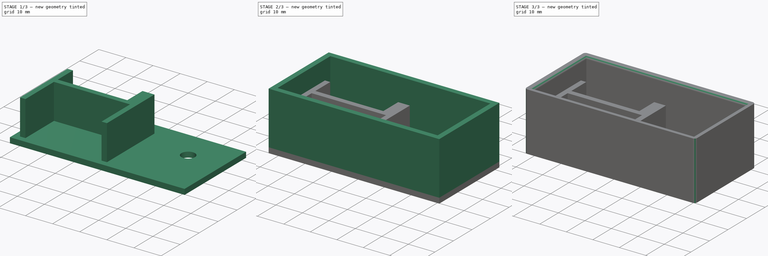
[diagram: build sequence overview — one tinted view per stage of 3, left to right]
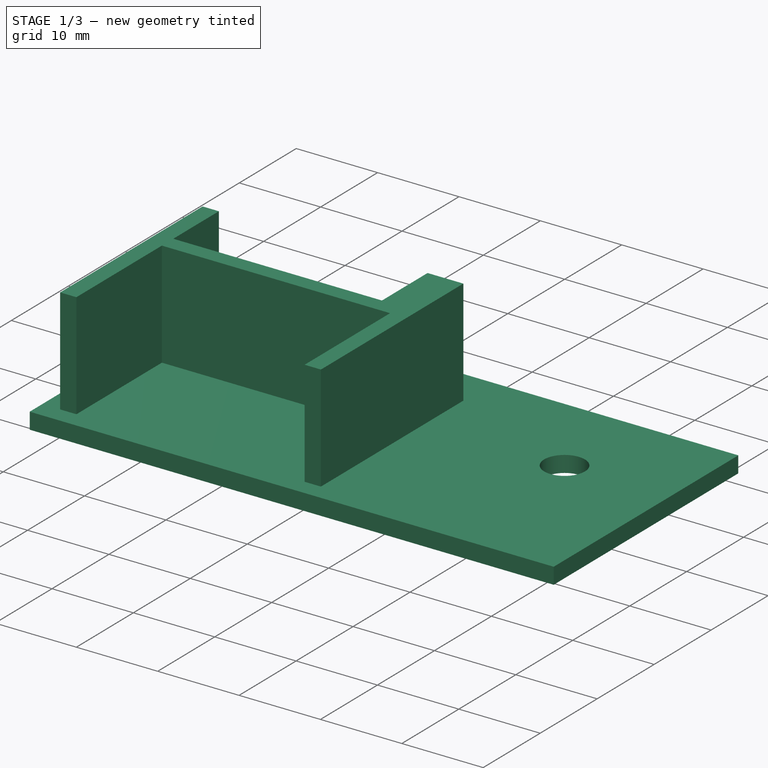
[diagram: stage 1 of 3 — iso view after this stage's code; geometry added in this stage tinted green]
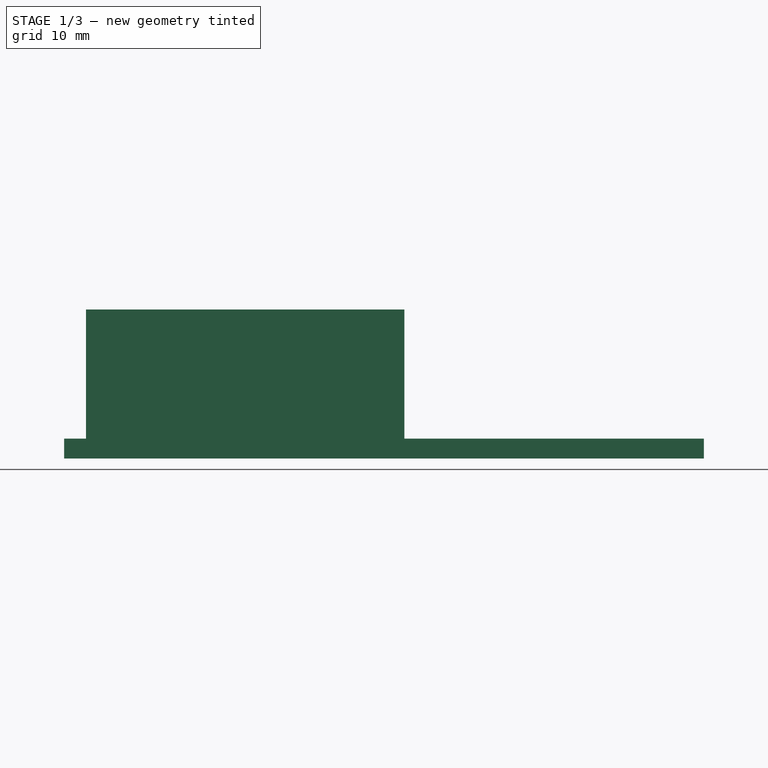
[diagram: stage 1 of 3 — front view after this stage's code; geometry added in this stage tinted green]
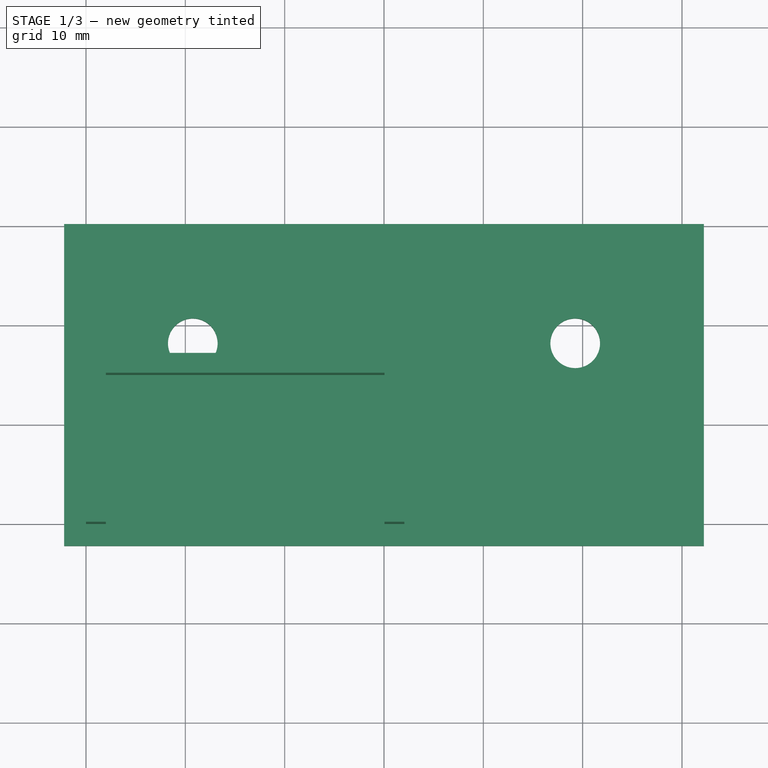
[diagram: stage 1 of 3 — top view after this stage's code; geometry added in this stage tinted green]
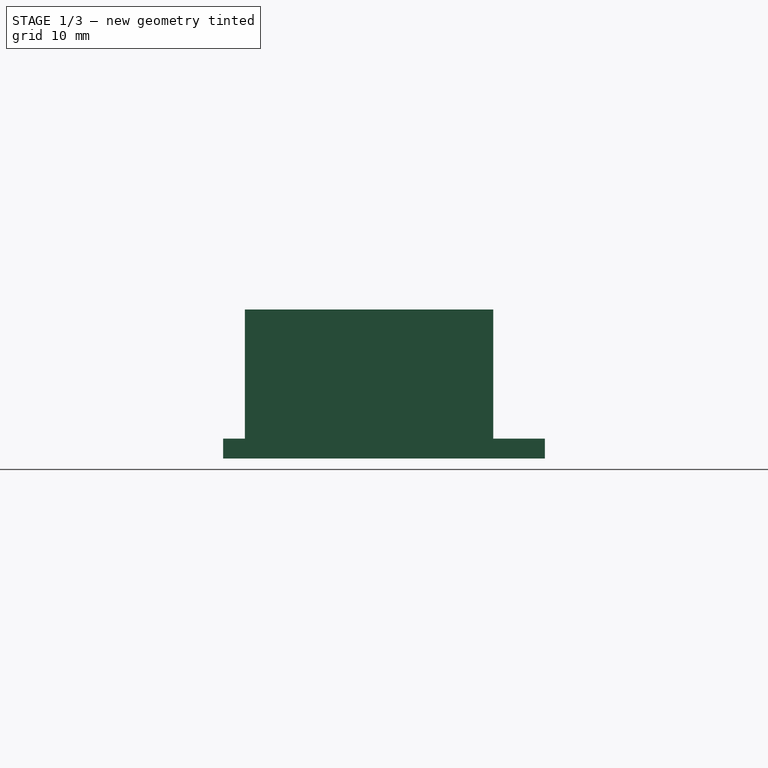
[diagram: stage 1 of 3 — right view after this stage's code; geometry added in this stage tinted green]
FCSTD DOCUMENT  (FreeCAD 0.20R29177 +426 (Git))
Label: PowersupplyHolder
License: All rights reserved
LicenseURL: http://en.wikipedia.org/wiki/All_rights_reserved
objects: Sketcher::SketchObject×5, PartDesign::Pad×4, PartDesign::Body×2, Spreadsheet::Sheet×1, PartDesign::Fillet×1
note: 17 computed .brp shape members not serialized (recipe doc carries the construction recipe); baked Part::Feature solids carry a one-line shape summary decoded from their .brp

FEATURE [Spreadsheet::Sheet] Spreadsheet
  cells = A2=betweenScrewDist; B2(betweenScrewDist)==39 - 0.5; C2=was 39, changed to 38; A3=powerSupplyWidth; B3(powerSupplyWidth)=60; A4=powerSupplyHeight; B4(powerSupplyHeight)=28; A6=pwAdj; B6(pwAdj)=0.2; A8=unitThickness; B8(unitThickness)=2; A10=screwHoleR; B10(screwHoleR)=2.5; A12=screwHoleToWindowSideDist; B12(screwHoleToWindowSideDist)==10 + 2; C12=was 10, changed to 12; A13=screwHoleCapR; B13(screwHoleCapR)==screwHoleR + 1.5; A14=bottomThickness; B14(bottomThickness)==unitThickness; A15=bottomWallHeight; B15(bottomWallHeight)=20; A18=bottomScreCapThickness; B18(bottomScreCapThickness)==unitThickness + 2.5; A22=picoHolderW; B22(picoHolderW)=25.6; A23=picoHolderAdj; B23(picoHolderAdj)=0.05; A24=picoAdapterPicosideHeight; B24(picoAdapterPicosideHeight)=8; A25=picoAdapterPowersideHeight; B25(picoAdapterPowersideHeight)=15
FEATURE [Sketcher::SketchObject] Sketch
  FullyConstrained = true
  MapMode = 5
  Support = -> [XY_Plane]
  expr: Constraints[10] = Spreadsheet.powerSupplyWidth + Spreadsheet.pwAdj * 2
  expr: Constraints[11] = Spreadsheet.powerSupplyHeight + Spreadsheet.pwAdj * 2
  expr: Constraints[20] = Spreadsheet.unitThickness
  expr: Constraints[21] = Spreadsheet.unitThickness
  expr: Constraints[22] = Spreadsheet.unitThickness
  expr: Constraints[23] = Spreadsheet.unitThickness
  expr: Constraints[26] = Spreadsheet.powerSupplyWidth
  expr: Constraints[29] = Spreadsheet.betweenScrewDist
  expr: Constraints[30] = Spreadsheet.screwHoleR
  expr: Constraints[31] = Spreadsheet.screwHoleR
  expr: Constraints[34] = (Spreadsheet.powerSupplyWidth - Spreadsheet.betweenScrewDist) / 2
  expr: Constraints[35] = Spreadsheet.screwHoleToWindowSideDist
  expr: Constraints[7] = Spreadsheet.pwAdj
  expr: Constraints[8] = Spreadsheet.pwAdj
  sketch-geometry (12):
    g0: LineSegment StartX=-0.2 StartY=-0.2 StartZ=0 EndX=60.2 EndY=-0.2 EndZ=0
    g1: LineSegment StartX=60.2 StartY=28.2 StartZ=0 EndX=-0.2 EndY=28.2 EndZ=0
    g2: LineSegment StartX=-0.2 StartY=28.2 StartZ=0 EndX=-0.2 EndY=-0.2 EndZ=0
    g3: LineSegment StartX=60.2 StartY=-0.2 StartZ=0 EndX=60.2 EndY=28.2 EndZ=0
    g4: LineSegment StartX=-2.2 StartY=30.2 StartZ=0 EndX=62.2 EndY=30.2 EndZ=0
    g5: LineSegment StartX=62.2 StartY=30.2 StartZ=0 EndX=62.2 EndY=-2.2 EndZ=0
    g6: LineSegment StartX=62.2 StartY=-2.2 StartZ=0 EndX=-2.2 EndY=-2.2 EndZ=0
    g7: LineSegment StartX=-2.2 StartY=-2.2 StartZ=0 EndX=-2.2 EndY=30.2 EndZ=0
    g8: LineSegment StartX=0 StartY=18.2 StartZ=0 EndX=60 EndY=18.2 EndZ=0
    g9: Circle CenterX=10.75 CenterY=18.2 CenterZ=0 NormalX=0 NormalY=0 NormalZ=1 AngleXU=0 Radius=2.5
    g10: Circle CenterX=49.25 CenterY=18.2 CenterZ=0 NormalX=0 NormalY=0 NormalZ=1 AngleXU=0 Radius=2.5
    g11: LineSegment StartX=10.75 StartY=18.2 StartZ=0 EndX=49.25 EndY=18.2 EndZ=0
  constraints (36):
    c: Horizontal(g0)
    c: Coincident(g2,g1)
    c: Coincident(g2,g0)
    c: Vertical(g2)
    c: Coincident(g3,g0)
    c: Coincident(g3,g1)
    c: Vertical(g3)
    c: DistanceX(g0,g-1) = 0.2
    c: DistanceY(g0,g-1) = 0.2
    c: Horizontal(g1)
    c: DistanceX(g1,g1) = 60.4
    c: DistanceY(g3,g3) = 28.4
    c: Coincident(g4,g5)
    c: Coincident(g5,g6)
    c: Coincident(g6,g7)
    c: Coincident(g7,g4)
    c: Horizontal(g4)
    c: Horizontal(g6)
    c: Vertical(g5)
    c: Vertical(g7)
    c: DistanceX(g4,g1) = 2
    c: DistanceY(g1,g4) = 2
    c: DistanceX(g1,g4) = 2
    c: DistanceY(g5,g0) = 2
    c: PointOnObject(g8,g-2)
    c: Horizontal(g8)
    c: DistanceX(g8,g8) = 60
    c: PointOnObject(g9,g8)
    c: PointOnObject(g10,g8)
    c: DistanceX(g9,g10) = 38.5
    c: Radius(g9) = 2.5
    c: Radius(g10) = 2.5
    c: Coincident(g11,g9)
    c: Coincident(g11,g10)
    c: DistanceX(g-1,g9) = 10.75
    c: DistanceY(g9,g4) = 12
FEATURE [Sketcher::SketchObject] Sketch001  label="Sketch001Base"
  ExternalGeometry = -> [Sketch]
  FullyConstrained = true
  MapMode = 5
  Support = -> [XY_Plane]
  sketch-geometry (6):
    g0: Circle CenterX=49.25 CenterY=18.2 CenterZ=0 NormalX=0 NormalY=0 NormalZ=1 AngleXU=0 Radius=2.5
    g1: Circle CenterX=10.75 CenterY=18.2 CenterZ=0 NormalX=0 NormalY=0 NormalZ=1 AngleXU=0 Radius=2.5
    g2: LineSegment StartX=62.2 StartY=30.2 StartZ=0 EndX=62.2 EndY=-2.2 EndZ=0
    g3: LineSegment StartX=62.2 StartY=-2.2 StartZ=0 EndX=-2.2 EndY=-2.2 EndZ=0
    g4: LineSegment StartX=62.2 StartY=30.2 StartZ=0 EndX=-2.2 EndY=30.2 EndZ=0
    g5: LineSegment StartX=-2.2 StartY=30.2 StartZ=0 EndX=-2.2 EndY=-2.2 EndZ=0
  constraints (13):
    c: Coincident(g0,g-7)
    c: Equal(g0,g-7)
    c: Coincident(g1,g-6)
    c: Equal(g-6,g1)
    c: Coincident(g2,g-3)
    c: Vertical(g2)
    c: Coincident(g3,g2)
    c: Coincident(g3,g-4)
    c: Horizontal(g3)
    c: Coincident(g4,g2)
    c: Coincident(g4,g-4)
    c: Coincident(g5,g4)
    c: Coincident(g5,g3)
FEATURE [PartDesign::Pad] Pad
  Direction = (0,0,1)
  Length = 2
  Length2 = 10
  Profile = -> Sketch001
  ReferenceAxis = -> Sketch001 [N_Axis]
  Type = 0
  expr: Length = Spreadsheet.unitThickness
FEATURE [PartDesign::Body] Body
  Group = -> [Sketch,Sketch001,Pad,Sketch002,Pad001,Sketch003,Pad002,Fillet]
  Origin = -> Origin
  Tip = -> Fillet
FEATURE [Sketcher::SketchObject] Sketch004
  FullyConstrained = true
  MapMode = 5
  Support = -> [XY_Plane001]
  expr: Constraints[26] = Spreadsheet.picoAdapterPicosideHeight
  expr: Constraints[27] = Spreadsheet.picoAdapterPicosideHeight
  expr: Constraints[28] = Spreadsheet.picoAdapterPowersideHeight
  expr: Constraints[29] = Spreadsheet.unitThickness
  expr: Constraints[30] = Spreadsheet.unitThickness
  expr: Constraints[31] = Spreadsheet.unitThickness
  expr: Constraints[32] = Spreadsheet.picoHolderW + Spreadsheet.picoHolderAdj
  expr: Constraints[33] = Spreadsheet.unitThickness
  expr: Constraints[34] = Spreadsheet.powerSupplyHeight + Spreadsheet.picoHolderAdj
  sketch-geometry (12):
    g0: LineSegment StartX=0 StartY=0 StartZ=0 EndX=0 EndY=25 EndZ=0
    g1: LineSegment StartX=0 StartY=25 StartZ=0 EndX=2 EndY=25 EndZ=0
    g2: LineSegment StartX=2 StartY=25 StartZ=0 EndX=2 EndY=17 EndZ=0
    g3: LineSegment StartX=2 StartY=17 StartZ=0 EndX=27.65 EndY=17 EndZ=0
    g4: LineSegment StartX=27.65 StartY=17 StartZ=0 EndX=27.65 EndY=25 EndZ=0
    g5: LineSegment StartX=27.65 StartY=25 StartZ=0 EndX=32.05 EndY=25 EndZ=0
    g6: LineSegment StartX=32.05 StartY=25 StartZ=0 EndX=32.05 EndY=0 EndZ=0
    g7: LineSegment StartX=32.05 StartY=0 StartZ=0 EndX=30.05 EndY=0 EndZ=0
    g8: LineSegment StartX=30.05 StartY=0 StartZ=0 EndX=30.05 EndY=15 EndZ=0
    g9: LineSegment StartX=30.05 StartY=15 StartZ=0 EndX=2 EndY=15 EndZ=0
    g10: LineSegment StartX=2 StartY=15 StartZ=0 EndX=2 EndY=0 EndZ=0
    g11: LineSegment StartX=2 StartY=0 StartZ=0 EndX=0 EndY=0 EndZ=0
  constraints (35):
    c: Coincident(g0,g-1)
    c: PointOnObject(g0,g-2)
    c: Coincident(g1,g0)
    c: Horizontal(g1)
    c: Coincident(g2,g1)
    c: Vertical(g2)
    c: Coincident(g3,g2)
    c: Horizontal(g3)
    c: Coincident(g4,g3)
    c: Vertical(g4)
    c: Coincident(g5,g4)
    c: Horizontal(g5)
    c: Coincident(g6,g5)
    c: PointOnObject(g6,g-1)
    c: Vertical(g6)
    c: Coincident(g7,g6)
    c: PointOnObject(g7,g-1)
    c: Coincident(g8,g7)
    c: Vertical(g8)
    c: Coincident(g9,g8)
    c: Horizontal(g9)
    c: Coincident(g10,g9)
    c: PointOnObject(g10,g-1)
    c: Vertical(g10)
    c: Coincident(g11,g10)
    c: Coincident(g11,g0)
    c: DistanceY(g2,g2) = 8
    c: DistanceY(g4,g4) = 8
    c: DistanceY(g10,g10) = 15
    c: DistanceY(g9,g2) = 2
    c: DistanceX(g1,g1) = 2
    c: DistanceX(g11,g11) = 2
    c: DistanceX(g3,g3) = 25.65
    c: DistanceX(g7,g7) = 2
    c: DistanceX(g9,g9) = 28.05
FEATURE [PartDesign::Pad] Pad003
  Direction = (0,0,1)
  Length = 15
  Length2 = 10
  Profile = -> Sketch004
  ReferenceAxis = -> Sketch004 [N_Axis]
  Type = 0
FEATURE [PartDesign::Body] Body001  label="Body001PicoAdapter"
  Group = -> [Sketch004,Pad003]
  Origin = -> Origin001
  Tip = -> Pad003
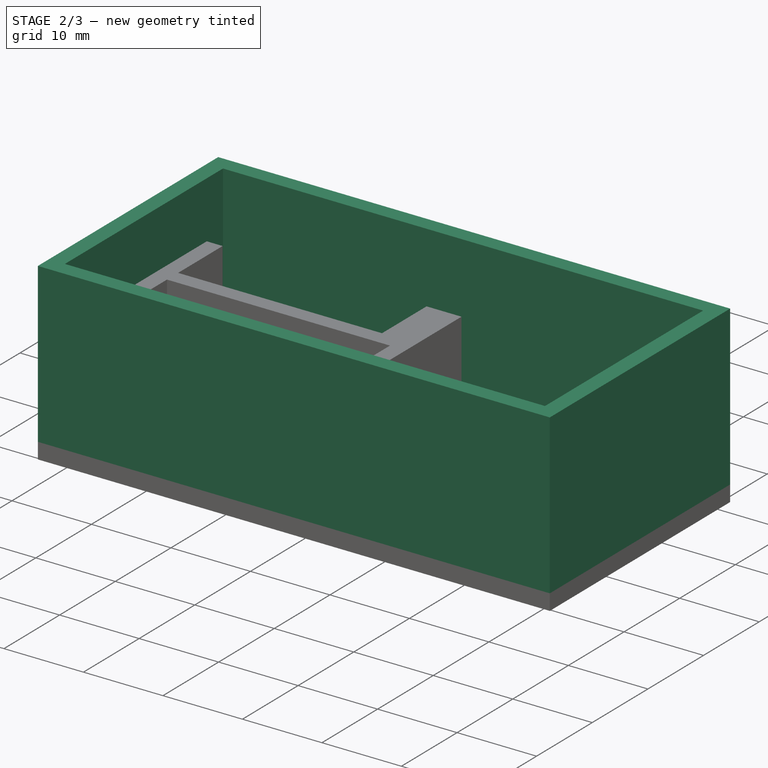
[diagram: stage 2 of 3 — iso view after this stage's code; geometry added in this stage tinted green]
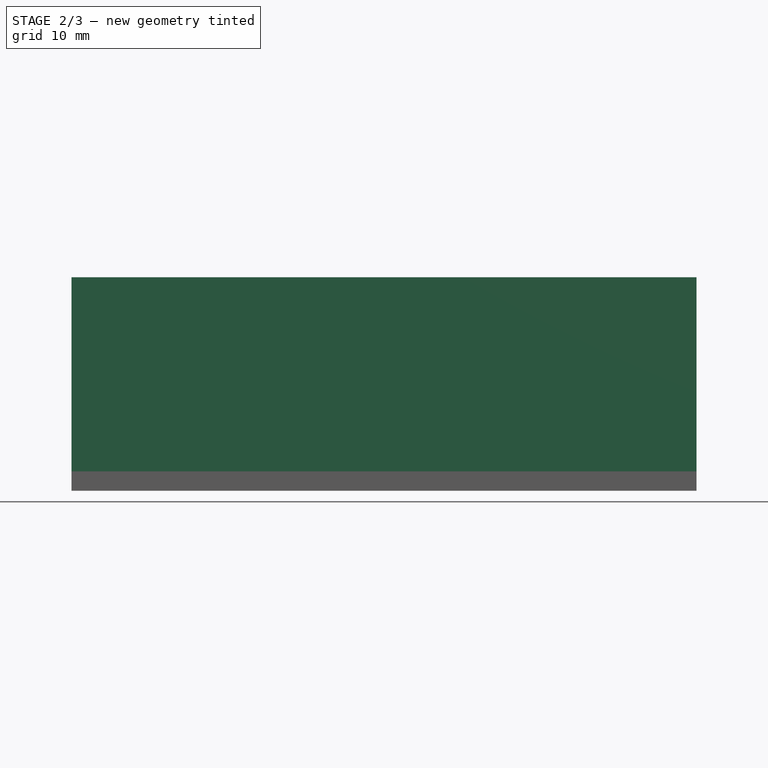
[diagram: stage 2 of 3 — front view after this stage's code; geometry added in this stage tinted green]
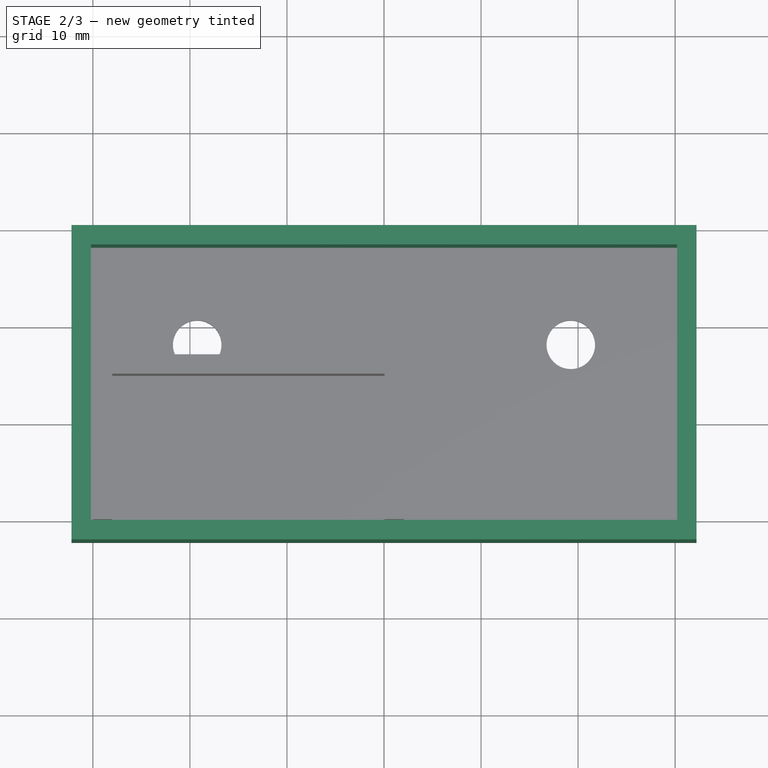
[diagram: stage 2 of 3 — top view after this stage's code; geometry added in this stage tinted green]
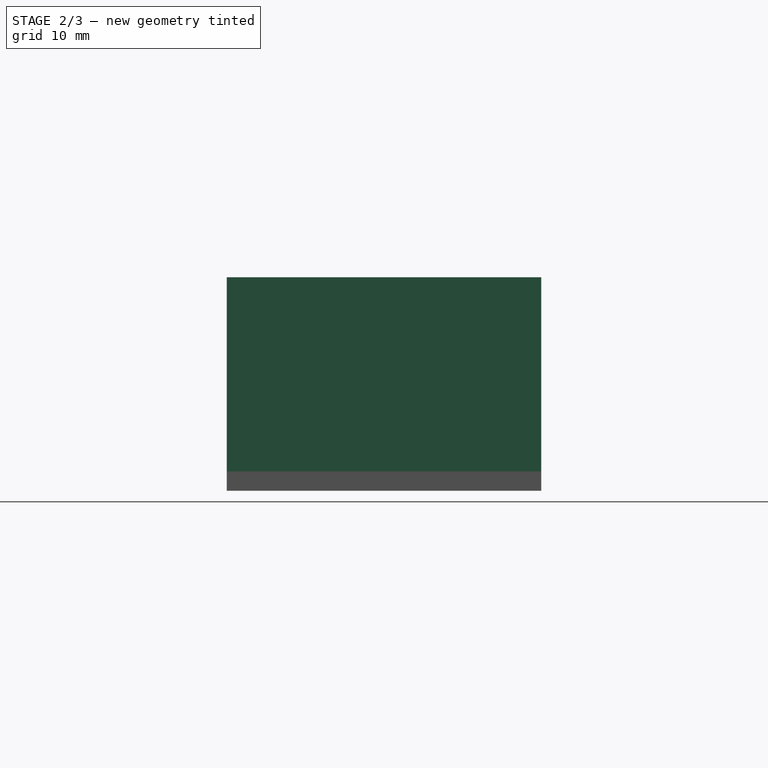
[diagram: stage 2 of 3 — right view after this stage's code; geometry added in this stage tinted green]
FEATURE [Sketcher::SketchObject] Sketch002
  ExternalGeometry = -> [Sketch]
  FullyConstrained = true
  MapMode = 5
  Support = -> [XY_Plane]
  sketch-geometry (8):
    g0: LineSegment StartX=-2.2 StartY=30.2 StartZ=0 EndX=62.2 EndY=30.2 EndZ=0
    g1: LineSegment StartX=62.2 StartY=30.2 StartZ=0 EndX=62.2 EndY=-2.2 EndZ=0
    g2: LineSegment StartX=62.2 StartY=-2.2 StartZ=0 EndX=-2.2 EndY=-2.2 EndZ=0
    g3: LineSegment StartX=-2.2 StartY=-2.2 StartZ=0 EndX=-2.2 EndY=30.2 EndZ=0
    g4: LineSegment StartX=-0.2 StartY=28.2 StartZ=0 EndX=60.2 EndY=28.2 EndZ=0
    g5: LineSegment StartX=60.2 StartY=28.2 StartZ=0 EndX=60.2 EndY=-0.2 EndZ=0
    g6: LineSegment StartX=60.2 StartY=-0.2 StartZ=0 EndX=-0.2 EndY=-0.2 EndZ=0
    g7: LineSegment StartX=-0.2 StartY=-0.2 StartZ=0 EndX=-0.2 EndY=28.2 EndZ=0
  constraints (20):
    c: Coincident(g0,g1)
    c: Coincident(g1,g2)
    c: Coincident(g2,g3)
    c: Coincident(g3,g0)
    c: Horizontal(g0)
    c: Horizontal(g2)
    c: Vertical(g1)
    c: Vertical(g3)
    c: Coincident(g0,g-4)
    c: Coincident(g4,g5)
    c: Coincident(g5,g6)
    c: Coincident(g6,g7)
    c: Coincident(g7,g4)
    c: Horizontal(g4)
    c: Horizontal(g6)
    c: Vertical(g5)
    c: Vertical(g7)
    c: Coincident(g4,g-6)
    c: Coincident(g5,g-7)
    c: Coincident(g1,g-8)
FEATURE [PartDesign::Pad] Pad001
  BaseFeature = -> Pad
  Direction = (0,0,1)
  Length = 22
  Length2 = 10
  Profile = -> Sketch002
  ReferenceAxis = -> Sketch002 [N_Axis]
  Type = 0
  expr: Length = Spreadsheet.bottomThickness + Spreadsheet.bottomWallHeight
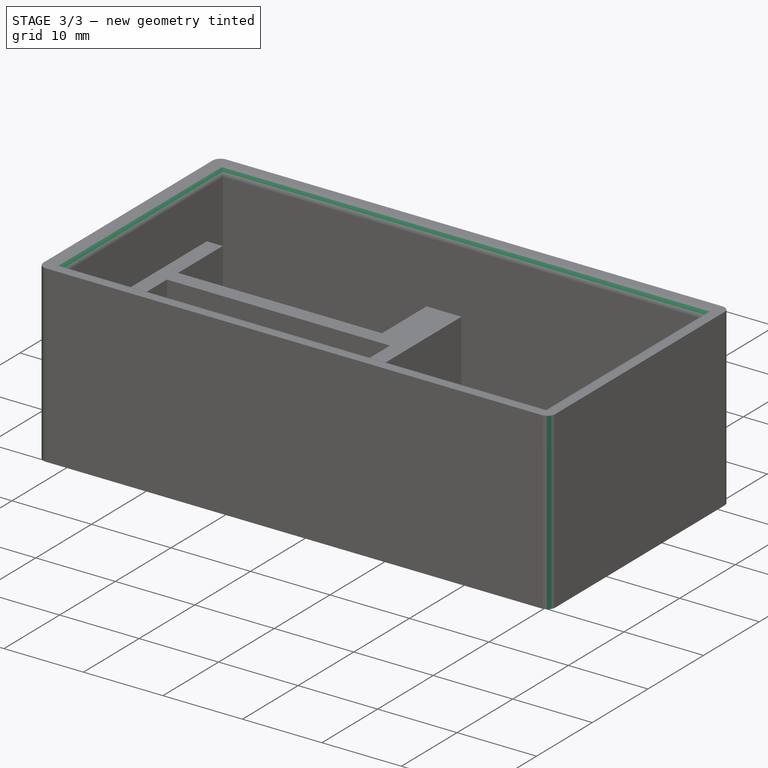
[diagram: stage 3 of 3 — iso view after this stage's code; geometry added in this stage tinted green]
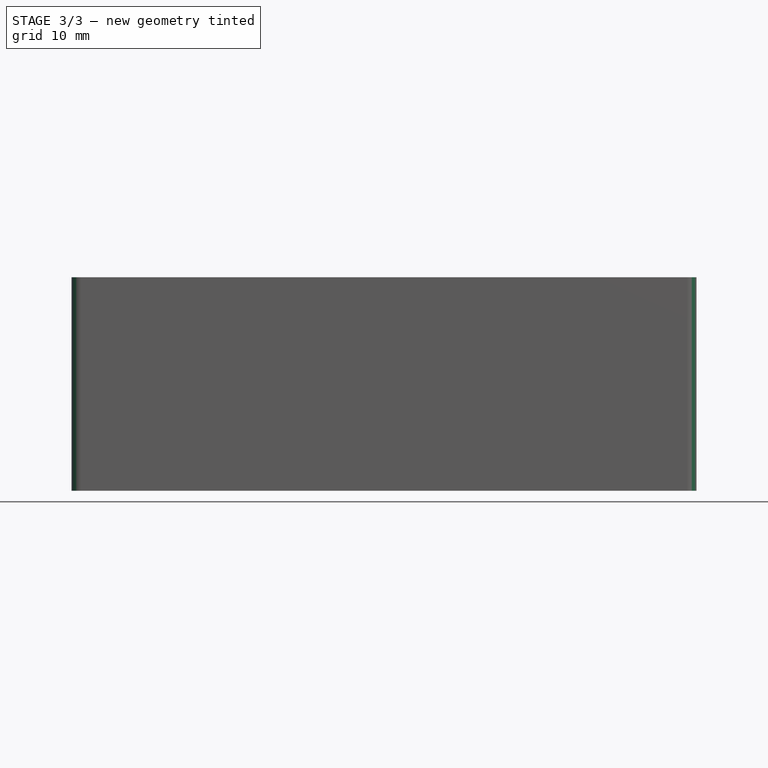
[diagram: stage 3 of 3 — front view after this stage's code; geometry added in this stage tinted green]
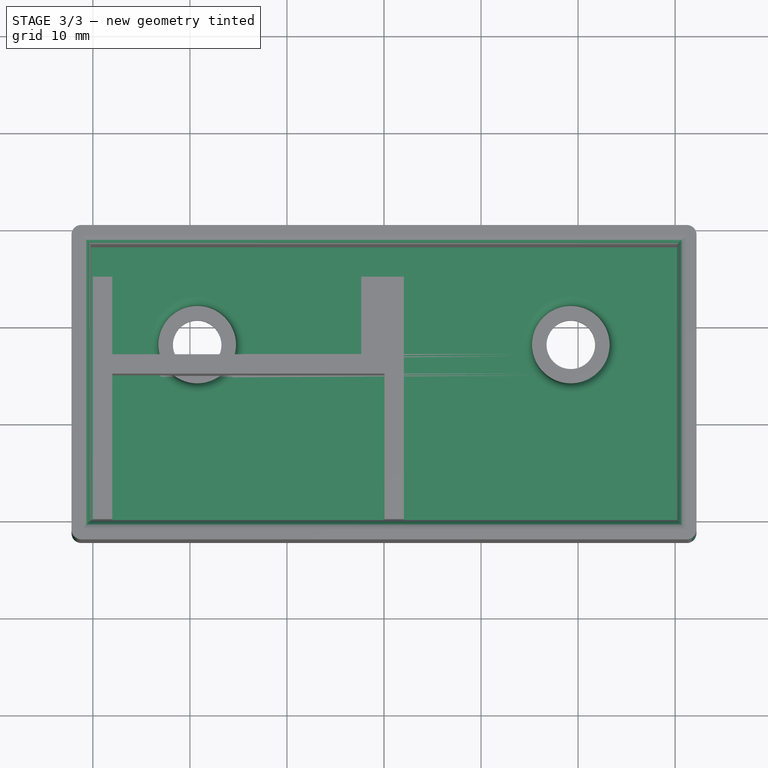
[diagram: stage 3 of 3 — top view after this stage's code; geometry added in this stage tinted green]
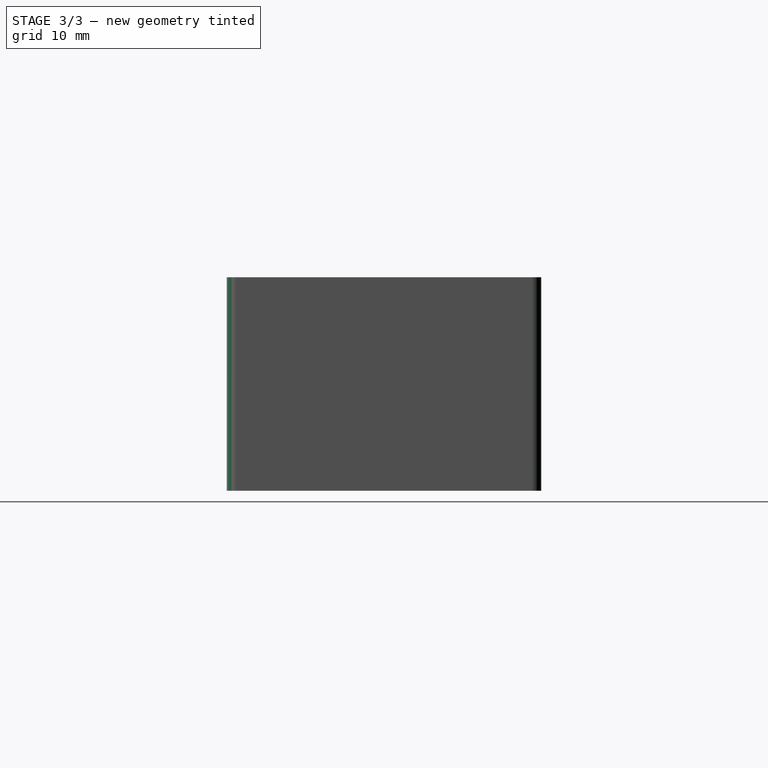
[diagram: stage 3 of 3 — right view after this stage's code; geometry added in this stage tinted green]
FEATURE [Sketcher::SketchObject] Sketch003  label="Sketch001Base001"
  ExternalGeometry = -> [Sketch]
  FullyConstrained = true
  MapMode = 5
  Support = -> [XY_Plane]
  expr: Constraints[11] = Spreadsheet.screwHoleCapR
  sketch-geometry (6):
    g0: Circle CenterX=49.25 CenterY=18.2 CenterZ=0 NormalX=0 NormalY=0 NormalZ=1 AngleXU=0 Radius=4
    g1: Circle CenterX=10.75 CenterY=18.2 CenterZ=0 NormalX=0 NormalY=0 NormalZ=1 AngleXU=0 Radius=4
    g2: LineSegment StartX=62.2 StartY=30.2 StartZ=0 EndX=62.2 EndY=-2.2 EndZ=0
    g3: LineSegment StartX=62.2 StartY=-2.2 StartZ=0 EndX=-2.2 EndY=-2.2 EndZ=0
    g4: LineSegment StartX=62.2 StartY=30.2 StartZ=0 EndX=-2.2 EndY=30.2 EndZ=0
    g5: LineSegment StartX=-2.2 StartY=30.2 StartZ=0 EndX=-2.2 EndY=-2.2 EndZ=0
  constraints (13):
    c: Coincident(g0,g-7)
    c: Coincident(g1,g-6)
    c: Coincident(g2,g-3)
    c: Vertical(g2)
    c: Coincident(g3,g2)
    c: Coincident(g3,g-4)
    c: Horizontal(g3)
    c: Coincident(g4,g2)
    c: Coincident(g4,g-4)
    c: Coincident(g5,g4)
    c: Coincident(g5,g3)
    c: Radius(g1) = 4
    c: Equal(g0,g1)
FEATURE [PartDesign::Pad] Pad002
  BaseFeature = -> Pad001
  Direction = (0,0,1)
  Length = 4.5
  Length2 = 10
  Profile = -> Sketch003
  ReferenceAxis = -> Sketch003 [N_Axis]
  Type = 0
  expr: Length = Spreadsheet.bottomScreCapThickness
FEATURE [PartDesign::Fillet] Fillet
  Base = -> Pad002 [Edge40,Edge39,Edge38,Edge37,Edge28,Edge26,Edge32,Edge31,Edge55,Edge56]
  BaseFeature = -> Pad002
  Radius = 1
  SupportTransform = false
  UseAllEdges = false
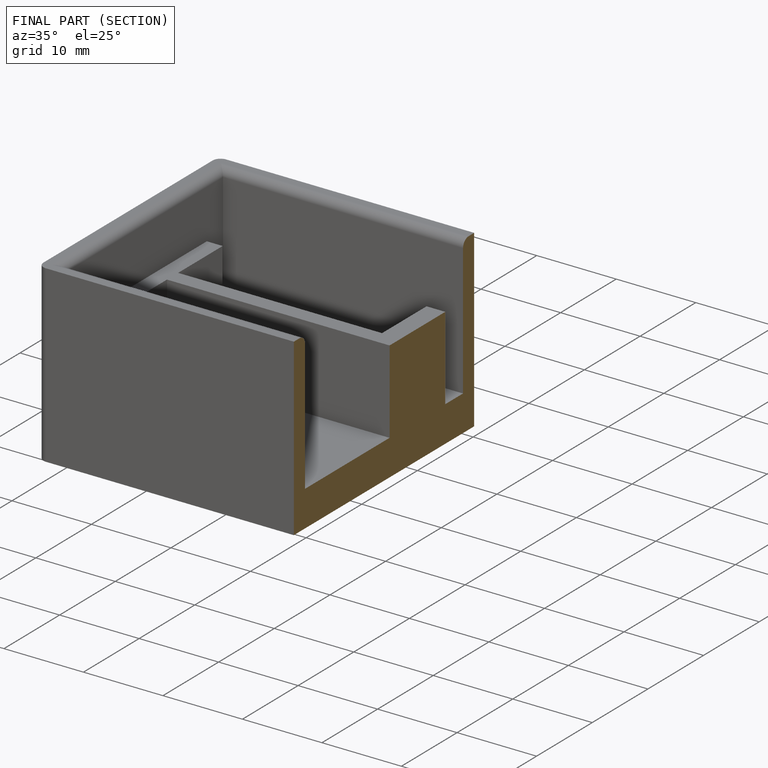
[diagram: finished part — half-section view (interior)]
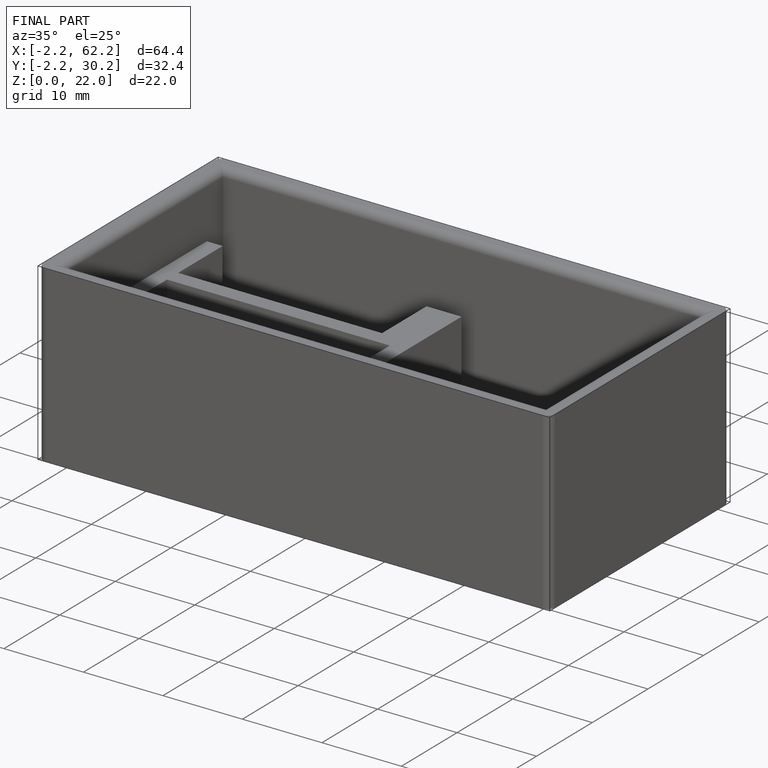
[diagram: finished part — iso view with bounding-box wireframe]
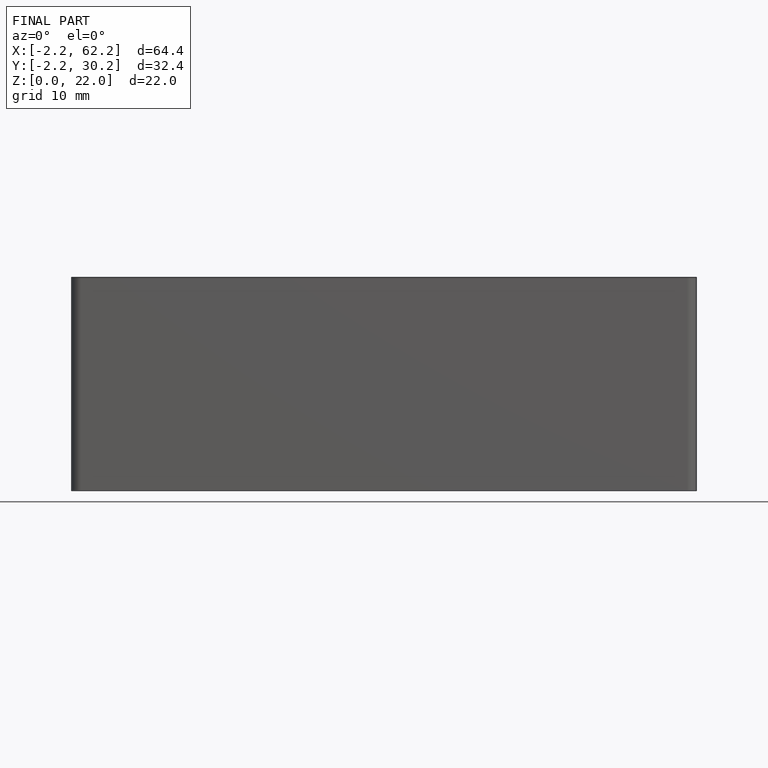
[diagram: finished part — front view with bounding-box wireframe]
